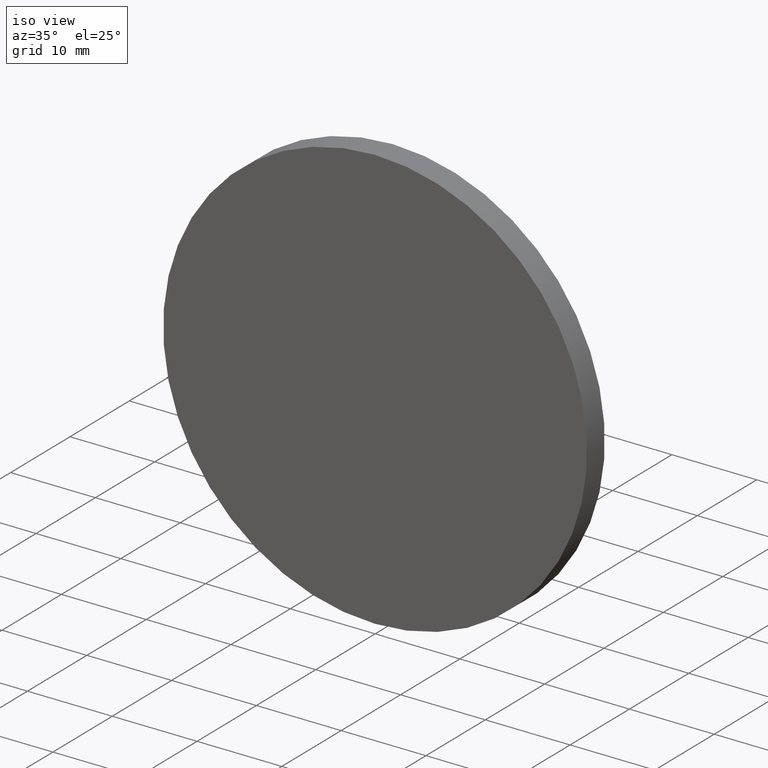
[diagram: clean part render]
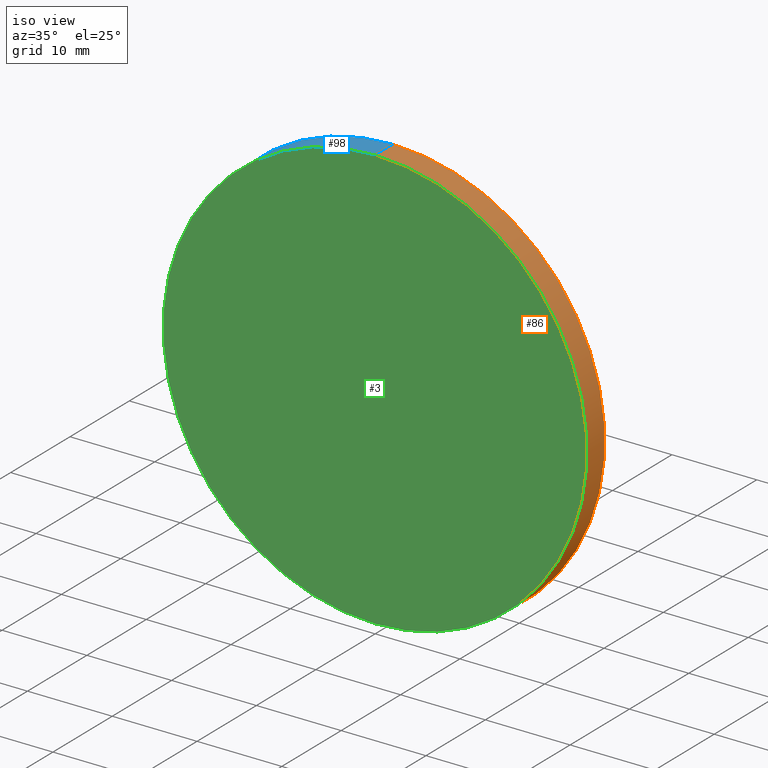
[diagram: same view with three faces highlighted in distinct colors, each labeled with its STEP entity id]
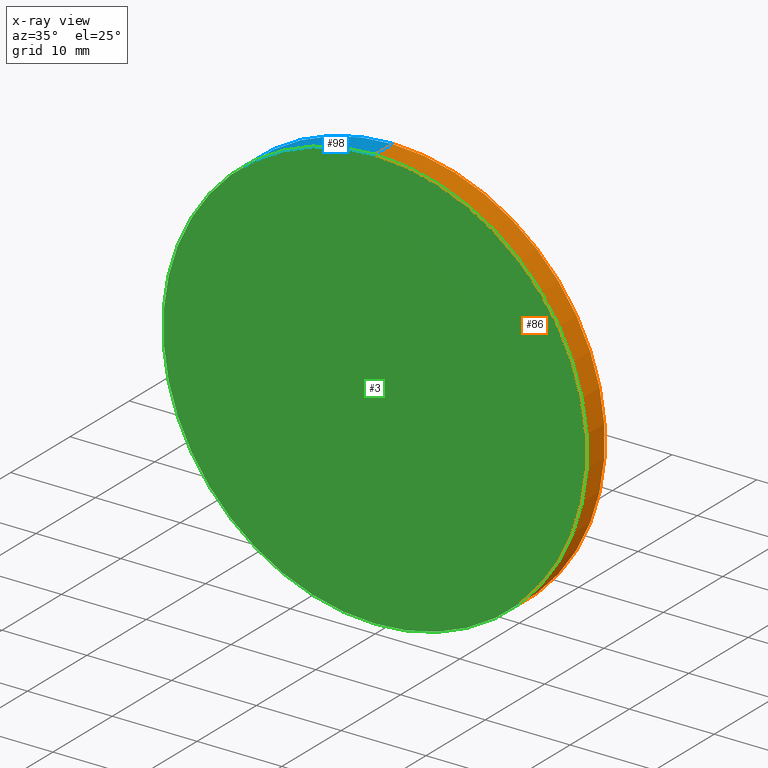
[diagram: x-ray of the same camera — body ghosted, the three highlighted faces saturated]
A machine part, iso view with three faces highlighted in distinct colors.
The next image is the same camera in x-ray (body ghosted, the three faces saturated) — at least one of them is partly hidden behind the body in this view.
Their STEP definitions:

[orange] entity #86 — the highlighted cylindrical surface (partial cylindrical patch) has radius 25 mm, axis along (-0, -1, -0).
#2 = CARTESIAN_POINT ( 'NONE',  ( 0.0000000000000000000, 3.000000000000000000, -25.00000000000000000 ) ) ;
#15 = LINE ( 'NONE', #29, #69 ) ;
#16 = CARTESIAN_POINT ( 'NONE',  ( 0.0000000000000000000, 3.000000000000000000, -25.00000000000000000 ) ) ;
#17 = EDGE_CURVE ( 'NONE', #23, #21, #73, .T. ) ;
#18 = VERTEX_POINT ( 'NONE', #83 ) ;
#20 = DIRECTION ( 'NONE',  ( 0.0000000000000000000, 1.000000000000000000, 0.0000000000000000000 ) ) ;
#21 = VERTEX_POINT ( 'NONE', #2 ) ;
#22 = CARTESIAN_POINT ( 'NONE',  ( 0.0000000000000000000, 3.000000000000000000, 0.0000000000000000000 ) ) ;
#23 = VERTEX_POINT ( 'NONE', #109 ) ;
#24 = EDGE_CURVE ( 'NONE', #77, #18, #135, .T. ) ;
#29 = CARTESIAN_POINT ( 'NONE',  ( 3.061616997868383000E-015, 3.000000000000000000, 25.00000000000000000 ) ) ;
#30 = DIRECTION ( 'NONE',  ( 0.0000000000000000000, 0.0000000000000000000, -1.000000000000000000 ) ) ;
#33 = EDGE_CURVE ( 'NONE', #23, #77, #15, .T. ) ;
#36 = VECTOR ( 'NONE', #68, 1000.000000000000000 ) ;
#37 = CARTESIAN_POINT ( 'NONE',  ( 3.061616997868383000E-015, 0.0000000000000000000, 25.00000000000000000 ) ) ;
#38 = AXIS2_PLACEMENT_3D ( 'NONE', #22, #20, #39 ) ;
#39 = DIRECTION ( 'NONE',  ( 0.0000000000000000000, 0.0000000000000000000, 1.000000000000000000 ) ) ;
#44 = FACE_OUTER_BOUND ( 'NONE', #55, .T. ) ;
#48 = DIRECTION ( 'NONE',  ( 0.0000000000000000000, 1.000000000000000000, 0.0000000000000000000 ) ) ;
#51 = DIRECTION ( 'NONE',  ( -0.0000000000000000000, -1.000000000000000000, -0.0000000000000000000 ) ) ;
#52 = ORIENTED_EDGE ( 'NONE', *, *, #33, .T. ) ;
#54 = AXIS2_PLACEMENT_3D ( 'NONE', #62, #48, #117 ) ;
#55 = EDGE_LOOP ( 'NONE', ( #123, #52, #64, #118 ) ) ;
#62 = CARTESIAN_POINT ( 'NONE',  ( 0.0000000000000000000, 0.0000000000000000000, 0.0000000000000000000 ) ) ;
#64 = ORIENTED_EDGE ( 'NONE', *, *, #24, .T. ) ;
#66 = CYLINDRICAL_SURFACE ( 'NONE', #102, 25.00000000000000000 ) ;
#68 = DIRECTION ( 'NONE',  ( -0.0000000000000000000, -1.000000000000000000, -0.0000000000000000000 ) ) ;
#69 = VECTOR ( 'NONE', #51, 1000.000000000000000 ) ;
#73 = CIRCLE ( 'NONE', #38, 25.00000000000000000 ) ;
#77 = VERTEX_POINT ( 'NONE', #37 ) ;
#83 = CARTESIAN_POINT ( 'NONE',  ( 0.0000000000000000000, 0.0000000000000000000, -25.00000000000000000 ) ) ;
#86 = ADVANCED_FACE ( 'NONE', ( #44 ), #66, .T. ) ;
#101 = DIRECTION ( 'NONE',  ( -0.0000000000000000000, -1.000000000000000000, -0.0000000000000000000 ) ) ;
#102 = AXIS2_PLACEMENT_3D ( 'NONE', #119, #101, #30 ) ;
#103 = EDGE_CURVE ( 'NONE', #21, #18, #130, .T. ) ;
#109 = CARTESIAN_POINT ( 'NONE',  ( 3.061616997868383000E-015, 3.000000000000000000, 25.00000000000000000 ) ) ;
#117 = DIRECTION ( 'NONE',  ( 0.0000000000000000000, 0.0000000000000000000, 1.000000000000000000 ) ) ;
#118 = ORIENTED_EDGE ( 'NONE', *, *, #103, .F. ) ;
#119 = CARTESIAN_POINT ( 'NONE',  ( 0.0000000000000000000, 3.000000000000000000, 0.0000000000000000000 ) ) ;
#123 = ORIENTED_EDGE ( 'NONE', *, *, #17, .F. ) ;
#130 = LINE ( 'NONE', #16, #36 ) ;
#135 = CIRCLE ( 'NONE', #54, 25.00000000000000000 ) ;

[blue] entity #98 — the highlighted cylindrical surface (partial cylindrical patch) has radius 25 mm, axis along (-0, -1, -0).
#2 = CARTESIAN_POINT ( 'NONE',  ( 0.0000000000000000000, 3.000000000000000000, -25.00000000000000000 ) ) ;
#8 = DIRECTION ( 'NONE',  ( 0.0000000000000000000, 0.0000000000000000000, -1.000000000000000000 ) ) ;
#12 = ORIENTED_EDGE ( 'NONE', *, *, #94, .F. ) ;
#15 = LINE ( 'NONE', #29, #69 ) ;
#16 = CARTESIAN_POINT ( 'NONE',  ( 0.0000000000000000000, 3.000000000000000000, -25.00000000000000000 ) ) ;
#18 = VERTEX_POINT ( 'NONE', #83 ) ;
#21 = VERTEX_POINT ( 'NONE', #2 ) ;
#23 = VERTEX_POINT ( 'NONE', #109 ) ;
#28 = EDGE_CURVE ( 'NONE', #18, #77, #105, .T. ) ;
#29 = CARTESIAN_POINT ( 'NONE',  ( 3.061616997868383000E-015, 3.000000000000000000, 25.00000000000000000 ) ) ;
#32 = DIRECTION ( 'NONE',  ( 0.0000000000000000000, 0.0000000000000000000, 1.000000000000000000 ) ) ;
#33 = EDGE_CURVE ( 'NONE', #23, #77, #15, .T. ) ;
#36 = VECTOR ( 'NONE', #68, 1000.000000000000000 ) ;
#37 = CARTESIAN_POINT ( 'NONE',  ( 3.061616997868383000E-015, 0.0000000000000000000, 25.00000000000000000 ) ) ;
#41 = FACE_OUTER_BOUND ( 'NONE', #90, .T. ) ;
#43 = ORIENTED_EDGE ( 'NONE', *, *, #28, .T. ) ;
#45 = ORIENTED_EDGE ( 'NONE', *, *, #33, .F. ) ;
#49 = DIRECTION ( 'NONE',  ( 0.0000000000000000000, 0.0000000000000000000, 1.000000000000000000 ) ) ;
#51 = DIRECTION ( 'NONE',  ( -0.0000000000000000000, -1.000000000000000000, -0.0000000000000000000 ) ) ;
#58 = CARTESIAN_POINT ( 'NONE',  ( 0.0000000000000000000, 3.000000000000000000, 0.0000000000000000000 ) ) ;
#59 = ORIENTED_EDGE ( 'NONE', *, *, #103, .T. ) ;
#63 = AXIS2_PLACEMENT_3D ( 'NONE', #97, #74, #49 ) ;
#68 = DIRECTION ( 'NONE',  ( -0.0000000000000000000, -1.000000000000000000, -0.0000000000000000000 ) ) ;
#69 = VECTOR ( 'NONE', #51, 1000.000000000000000 ) ;
#74 = DIRECTION ( 'NONE',  ( 0.0000000000000000000, 1.000000000000000000, 0.0000000000000000000 ) ) ;
#77 = VERTEX_POINT ( 'NONE', #37 ) ;
#83 = CARTESIAN_POINT ( 'NONE',  ( 0.0000000000000000000, 0.0000000000000000000, -25.00000000000000000 ) ) ;
#90 = EDGE_LOOP ( 'NONE', ( #45, #12, #59, #43 ) ) ;
#91 = DIRECTION ( 'NONE',  ( 0.0000000000000000000, 1.000000000000000000, 0.0000000000000000000 ) ) ;
#93 = AXIS2_PLACEMENT_3D ( 'NONE', #58, #91, #32 ) ;
#94 = EDGE_CURVE ( 'NONE', #21, #23, #99, .T. ) ;
#97 = CARTESIAN_POINT ( 'NONE',  ( 0.0000000000000000000, 0.0000000000000000000, 0.0000000000000000000 ) ) ;
#98 = ADVANCED_FACE ( 'NONE', ( #41 ), #125, .T. ) ;
#99 = CIRCLE ( 'NONE', #93, 25.00000000000000000 ) ;
#103 = EDGE_CURVE ( 'NONE', #21, #18, #130, .T. ) ;
#105 = CIRCLE ( 'NONE', #63, 25.00000000000000000 ) ;
#109 = CARTESIAN_POINT ( 'NONE',  ( 3.061616997868383000E-015, 3.000000000000000000, 25.00000000000000000 ) ) ;
#115 = AXIS2_PLACEMENT_3D ( 'NONE', #126, #134, #8 ) ;
#125 = CYLINDRICAL_SURFACE ( 'NONE', #115, 25.00000000000000000 ) ;
#126 = CARTESIAN_POINT ( 'NONE',  ( 0.0000000000000000000, 3.000000000000000000, 0.0000000000000000000 ) ) ;
#130 = LINE ( 'NONE', #16, #36 ) ;
#134 = DIRECTION ( 'NONE',  ( -0.0000000000000000000, -1.000000000000000000, -0.0000000000000000000 ) ) ;

[green] entity #3 — the highlighted planar face has unit normal (0, 1, 0).
#3 = ADVANCED_FACE ( 'NONE', ( #138 ), #136, .F. ) ;
#10 = ORIENTED_EDGE ( 'NONE', *, *, #24, .F. ) ;
#18 = VERTEX_POINT ( 'NONE', #83 ) ;
#24 = EDGE_CURVE ( 'NONE', #77, #18, #135, .T. ) ;
#28 = EDGE_CURVE ( 'NONE', #18, #77, #105, .T. ) ;
#31 = EDGE_LOOP ( 'NONE', ( #89, #10 ) ) ;
#37 = CARTESIAN_POINT ( 'NONE',  ( 3.061616997868383000E-015, 0.0000000000000000000, 25.00000000000000000 ) ) ;
#46 = AXIS2_PLACEMENT_3D ( 'NONE', #137, #72, #85 ) ;
#48 = DIRECTION ( 'NONE',  ( 0.0000000000000000000, 1.000000000000000000, 0.0000000000000000000 ) ) ;
#49 = DIRECTION ( 'NONE',  ( 0.0000000000000000000, 0.0000000000000000000, 1.000000000000000000 ) ) ;
#54 = AXIS2_PLACEMENT_3D ( 'NONE', #62, #48, #117 ) ;
#62 = CARTESIAN_POINT ( 'NONE',  ( 0.0000000000000000000, 0.0000000000000000000, 0.0000000000000000000 ) ) ;
#63 = AXIS2_PLACEMENT_3D ( 'NONE', #97, #74, #49 ) ;
#72 = DIRECTION ( 'NONE',  ( 0.0000000000000000000, 1.000000000000000000, 0.0000000000000000000 ) ) ;
#74 = DIRECTION ( 'NONE',  ( 0.0000000000000000000, 1.000000000000000000, 0.0000000000000000000 ) ) ;
#77 = VERTEX_POINT ( 'NONE', #37 ) ;
#83 = CARTESIAN_POINT ( 'NONE',  ( 0.0000000000000000000, 0.0000000000000000000, -25.00000000000000000 ) ) ;
#85 = DIRECTION ( 'NONE',  ( 0.0000000000000000000, -0.0000000000000000000, 1.000000000000000000 ) ) ;
#89 = ORIENTED_EDGE ( 'NONE', *, *, #28, .F. ) ;
#97 = CARTESIAN_POINT ( 'NONE',  ( 0.0000000000000000000, 0.0000000000000000000, 0.0000000000000000000 ) ) ;
#105 = CIRCLE ( 'NONE', #63, 25.00000000000000000 ) ;
#117 = DIRECTION ( 'NONE',  ( 0.0000000000000000000, 0.0000000000000000000, 1.000000000000000000 ) ) ;
#135 = CIRCLE ( 'NONE', #54, 25.00000000000000000 ) ;
#136 = PLANE ( 'NONE',  #46 ) ;
#137 = CARTESIAN_POINT ( 'NONE',  ( 0.0000000000000000000, 0.0000000000000000000, 0.0000000000000000000 ) ) ;
#138 = FACE_OUTER_BOUND ( 'NONE', #31, .T. ) ;